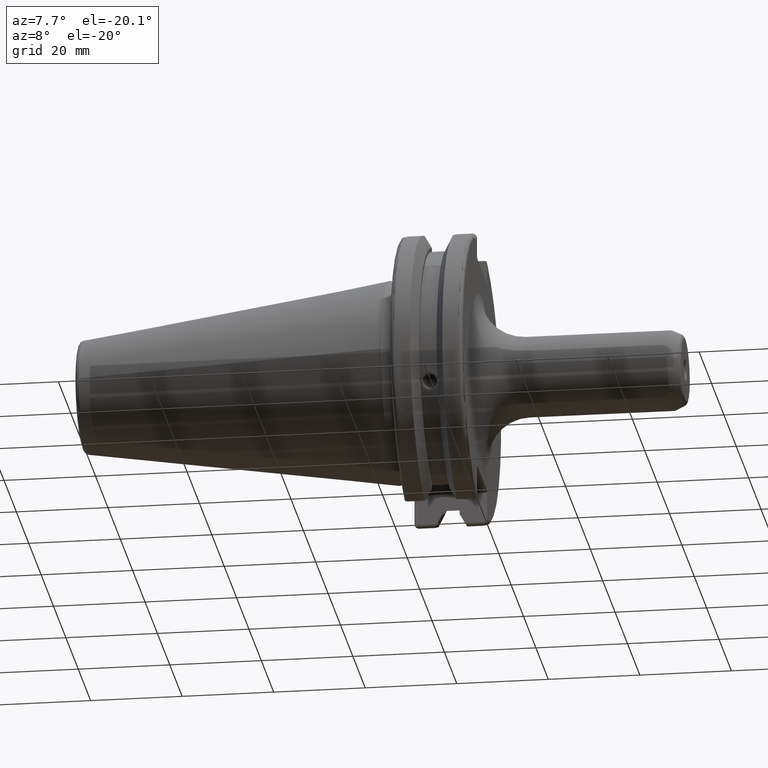
[diagram: clean part render]
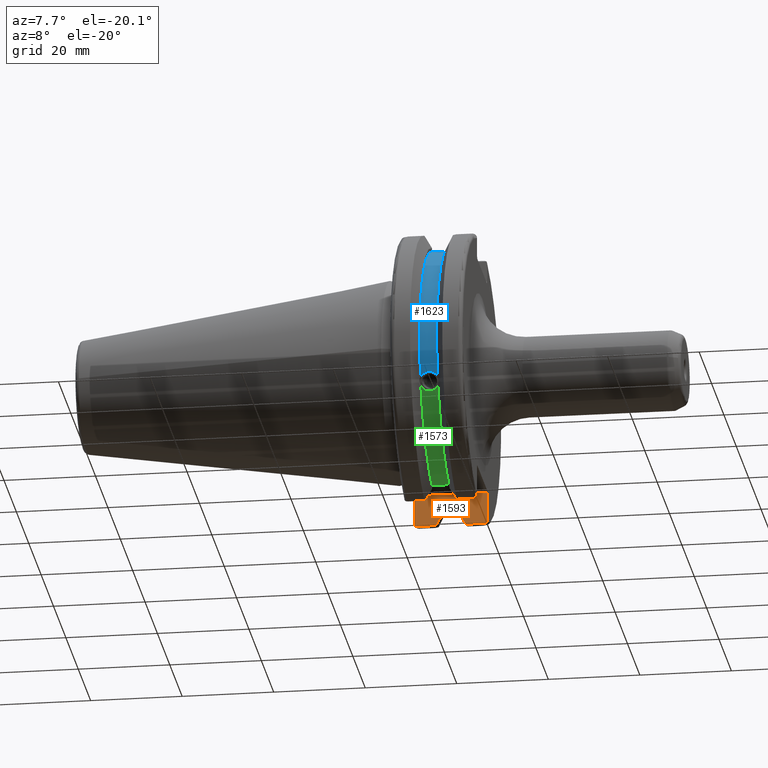
[diagram: same view with three faces highlighted in distinct colors, each labeled with its STEP entity id]
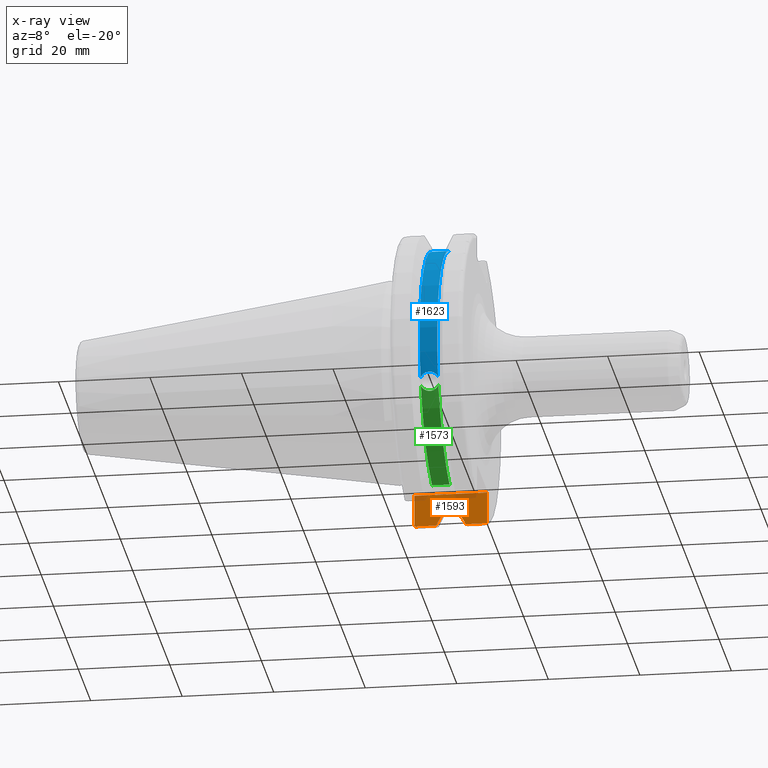
[diagram: x-ray of the same camera — body ghosted, the three highlighted faces saturated]
A machine part, auxiliary view with three faces highlighted in distinct colors.
The next image is the same camera in x-ray (body ghosted, the three faces saturated) — at least one of them is partly hidden behind the body in this view.
Their STEP definitions:

[orange] entity #1593 — the highlighted planar face has unit normal (-0, 1, 0).
#19=(
BOUNDED_CURVE()
B_SPLINE_CURVE(2,(#2837,#2838,#2839),.UNSPECIFIED.,.F.,.F.)
B_SPLINE_CURVE_WITH_KNOTS((3,3),(0.,0.276549142796136),.UNSPECIFIED.)
CURVE()
GEOMETRIC_REPRESENTATION_ITEM()
RATIONAL_B_SPLINE_CURVE((1.,1.00095203903316,1.00031614444813))
REPRESENTATION_ITEM('')
);
#24=(
BOUNDED_CURVE()
B_SPLINE_CURVE(2,(#2970,#2971,#2972),.UNSPECIFIED.,.F.,.F.)
B_SPLINE_CURVE_WITH_KNOTS((3,3),(0.0550586467393769,0.331607789535852),
 .UNSPECIFIED.)
CURVE()
GEOMETRIC_REPRESENTATION_ITEM()
RATIONAL_B_SPLINE_CURVE((1.00031614444922,1.00095203903643,1.))
REPRESENTATION_ITEM('')
);
#87=B_SPLINE_CURVE_WITH_KNOTS('',3,(#2927,#2928,#2929,#2930,#2931,#2932),
 .UNSPECIFIED.,.F.,.F.,(4,2,4),(0.452741154494497,0.491581665024871,0.505824174364157),
 .UNSPECIFIED.);
#90=B_SPLINE_CURVE_WITH_KNOTS('',3,(#2963,#2964,#2965,#2966,#2967,#2968),
 .UNSPECIFIED.,.F.,.F.,(4,2,4),(0.0977210450333169,0.111963554372601,0.150804064902975),
 .UNSPECIFIED.);
#114=LINE('',#2480,#208);
#143=LINE('',#2858,#237);
#144=LINE('',#2862,#238);
#145=LINE('',#2866,#239);
#154=LINE('',#2906,#248);
#160=LINE('',#2954,#254);
#162=LINE('',#2961,#256);
#163=LINE('',#2969,#257);
#208=VECTOR('',#1917,10.);
#237=VECTOR('',#2086,10.);
#238=VECTOR('',#2091,10.);
#239=VECTOR('',#2096,10.);
#248=VECTOR('',#2135,10.);
#254=VECTOR('',#2151,10.);
#256=VECTOR('',#2155,10.);
#257=VECTOR('',#2156,10.);
#346=PLANE('',#1781);
#417=FACE_OUTER_BOUND('',#519,.T.);
#519=EDGE_LOOP('',(#1326,#1327,#1328,#1329,#1330,#1331,#1332,#1333,#1334,
#1335,#1336,#1337));
#665=VERTEX_POINT('',#2458);
#675=VERTEX_POINT('',#2478);
#734=VERTEX_POINT('',#2834);
#735=VERTEX_POINT('',#2836);
#740=VERTEX_POINT('',#2856);
#741=VERTEX_POINT('',#2860);
#742=VERTEX_POINT('',#2864);
#757=VERTEX_POINT('',#2903);
#758=VERTEX_POINT('',#2905);
#764=VERTEX_POINT('',#2926);
#767=VERTEX_POINT('',#2953);
#769=VERTEX_POINT('',#2962);
#843=EDGE_CURVE('',#675,#665,#114,.T.);
#929=EDGE_CURVE('',#734,#735,#19,.T.);
#936=EDGE_CURVE('',#740,#734,#143,.T.);
#938=EDGE_CURVE('',#741,#740,#144,.T.);
#940=EDGE_CURVE('',#742,#741,#145,.T.);
#958=EDGE_CURVE('',#757,#758,#154,.T.);
#966=EDGE_CURVE('',#665,#764,#87,.T.);
#970=EDGE_CURVE('',#764,#767,#160,.T.);
#973=EDGE_CURVE('',#758,#675,#162,.T.);
#974=EDGE_CURVE('',#769,#757,#90,.T.);
#975=EDGE_CURVE('',#735,#769,#163,.T.);
#976=EDGE_CURVE('',#767,#742,#24,.T.);
#1326=ORIENTED_EDGE('',*,*,#966,.F.);
#1327=ORIENTED_EDGE('',*,*,#843,.F.);
#1328=ORIENTED_EDGE('',*,*,#973,.F.);
#1329=ORIENTED_EDGE('',*,*,#958,.F.);
#1330=ORIENTED_EDGE('',*,*,#974,.F.);
#1331=ORIENTED_EDGE('',*,*,#975,.F.);
#1332=ORIENTED_EDGE('',*,*,#929,.F.);
#1333=ORIENTED_EDGE('',*,*,#936,.F.);
#1334=ORIENTED_EDGE('',*,*,#938,.F.);
#1335=ORIENTED_EDGE('',*,*,#940,.F.);
#1336=ORIENTED_EDGE('',*,*,#976,.F.);
#1337=ORIENTED_EDGE('',*,*,#970,.F.);
#1593=ADVANCED_FACE('',(#417),#346,.F.);
#1781=AXIS2_PLACEMENT_3D('',#2960,#2153,#2154);
#1917=DIRECTION('',(0.,0.,-1.));
#2086=DIRECTION('',(0.,0.,-1.));
#2091=DIRECTION('',(-1.,0.,0.));
#2096=DIRECTION('',(0.,0.,1.));
#2135=DIRECTION('',(0.,0.,1.));
#2151=DIRECTION('',(-1.,-1.31581988103722E-16,0.));
#2153=DIRECTION('center_axis',(-1.31581988103722E-16,1.,0.));
#2154=DIRECTION('ref_axis',(1.,1.31581988103722E-16,0.));
#2155=DIRECTION('',(1.,1.31581988103722E-16,0.));
#2156=DIRECTION('',(-1.,-1.31581988103722E-16,0.));
#2458=CARTESIAN_POINT('',(19.05,8.19,-29.6392712461019));
#2478=CARTESIAN_POINT('',(19.05,8.19,-23.1));
#2480=CARTESIAN_POINT('',(19.05,8.19,-11.3));
#2834=CARTESIAN_POINT('',(9.2191,8.19,-27.7771386827498));
#2836=CARTESIAN_POINT('',(7.88668530351257,8.19,-30.1755016258903));
#2837=CARTESIAN_POINT('Ctrl Pts',(9.2191,8.19,-27.7771386827498));
#2838=CARTESIAN_POINT('Ctrl Pts',(8.58046356152393,8.19,-28.9303689539705));
#2839=CARTESIAN_POINT('Ctrl Pts',(7.88668530351257,8.19,-30.1755016258903));
#2856=CARTESIAN_POINT('',(9.2191,8.19,-26.932255754021));
#2858=CARTESIAN_POINT('',(9.2191,8.18999999999999,-11.3));
#2860=CARTESIAN_POINT('',(13.0491,8.19,-26.932255754021));
#2862=CARTESIAN_POINT('',(11.1341,8.19,-26.932255754021));
#2864=CARTESIAN_POINT('',(13.0491,8.19,-27.7771386827498));
#2866=CARTESIAN_POINT('',(13.0491,8.19,-11.3));
#2903=CARTESIAN_POINT('',(3.175,8.18999999999999,-29.6392712461019));
#2905=CARTESIAN_POINT('',(3.175,8.18999999999999,-23.1));
#2906=CARTESIAN_POINT('',(3.175,8.18999999999999,-11.3));
#2926=CARTESIAN_POINT('',(18.9058722749097,8.19,-30.1755016258903));
#2927=CARTESIAN_POINT('Ctrl Pts',(19.05,8.19,-29.6392712461019));
#2928=CARTESIAN_POINT('Ctrl Pts',(19.05,8.19,-29.7687396145364));
#2929=CARTESIAN_POINT('Ctrl Pts',(19.0204855670831,8.19,-29.9212724384851));
#2930=CARTESIAN_POINT('Ctrl Pts',(18.9539643471756,8.19,-30.0852355256475));
#2931=CARTESIAN_POINT('Ctrl Pts',(18.9318163728133,8.19,-30.131014531546));
#2932=CARTESIAN_POINT('Ctrl Pts',(18.9058722749097,8.19,-30.1755016258903));
#2953=CARTESIAN_POINT('',(14.3815146964874,8.19,-30.1755016258903));
#2954=CARTESIAN_POINT('',(16.8551333845378,8.19,-30.1755016258903));
#2960=CARTESIAN_POINT('Origin',(3.175,8.19,-22.6));
#2961=CARTESIAN_POINT('',(9.44125,8.19,-23.1));
#2962=CARTESIAN_POINT('',(3.31912772509028,8.19,-30.1755016258903));
#2963=CARTESIAN_POINT('Ctrl Pts',(3.31912772509028,8.19,-30.1755016258903));
#2964=CARTESIAN_POINT('Ctrl Pts',(3.29318362718666,8.19,-30.131014531546));
#2965=CARTESIAN_POINT('Ctrl Pts',(3.27103565282437,8.19,-30.0852355256475));
#2966=CARTESIAN_POINT('Ctrl Pts',(3.20451443291695,8.19,-29.9212724384851));
#2967=CARTESIAN_POINT('Ctrl Pts',(3.175,8.19,-29.7687396145364));
#2968=CARTESIAN_POINT('Ctrl Pts',(3.175,8.19,-29.6392712461019));
#2969=CARTESIAN_POINT('',(5.39146661546218,8.19,-30.1755016258903));
#2970=CARTESIAN_POINT('Ctrl Pts',(14.3815146964874,8.18999999999999,-30.1755016258903));
#2971=CARTESIAN_POINT('Ctrl Pts',(13.687736438474,8.19,-28.9303689539668));
#2972=CARTESIAN_POINT('Ctrl Pts',(13.0491,8.19,-27.7771386827498));

[blue] entity #1623 — the highlighted cylindrical surface (partial cylindrical patch) has radius 28.15 mm, axis along (1, 0, 0).
#77=B_SPLINE_CURVE_WITH_KNOTS('',3,(#2621,#2622,#2623,#2624,#2625,#2626,
#2627,#2628,#2629,#2630,#2631,#2632,#2633,#2634),.UNSPECIFIED.,.F.,.F.,
(4,2,2,2,2,2,4),(0.401639126382404,0.474814416953736,0.553950208498303,
0.63308600004287,0.712221791587437,0.791357583132004,0.864532873703336),
 .UNSPECIFIED.);
#167=LINE('',#3025,#261);
#261=VECTOR('',#2166,10.);
#316=CYLINDRICAL_SURFACE('',#1826,28.15);
#447=FACE_OUTER_BOUND('',#550,.T.);
#550=EDGE_LOOP('',(#1483,#1484,#1485,#1486));
#636=CIRCLE('',#1827,28.15);
#637=CIRCLE('',#1828,28.15);
#695=VERTEX_POINT('',#2618);
#696=VERTEX_POINT('',#2620);
#777=VERTEX_POINT('',#3022);
#778=VERTEX_POINT('',#3024);
#876=EDGE_CURVE('',#696,#695,#77,.T.);
#987=EDGE_CURVE('',#778,#777,#167,.T.);
#1038=EDGE_CURVE('',#778,#695,#636,.T.);
#1039=EDGE_CURVE('',#777,#696,#637,.T.);
#1483=ORIENTED_EDGE('',*,*,#876,.T.);
#1484=ORIENTED_EDGE('',*,*,#1038,.F.);
#1485=ORIENTED_EDGE('',*,*,#987,.T.);
#1486=ORIENTED_EDGE('',*,*,#1039,.T.);
#1623=ADVANCED_FACE('',(#447),#316,.T.);
#1826=AXIS2_PLACEMENT_3D('',#3173,#2274,#2275);
#1827=AXIS2_PLACEMENT_3D('',#3174,#2276,#2277);
#1828=AXIS2_PLACEMENT_3D('',#3175,#2278,#2279);
#2166=DIRECTION('',(-1.,0.,0.));
#2274=DIRECTION('center_axis',(1.,0.,0.));
#2275=DIRECTION('ref_axis',(0.,-0.887654187951484,0.46051063246378));
#2276=DIRECTION('center_axis',(1.,0.,0.));
#2277=DIRECTION('ref_axis',(0.,0.,-1.));
#2278=DIRECTION('center_axis',(1.,0.,0.));
#2279=DIRECTION('ref_axis',(0.,0.,-1.));
#2618=CARTESIAN_POINT('',(13.0491,-26.734714844398,-8.81348524641211));
#2620=CARTESIAN_POINT('',(9.2191,-26.734714844398,-8.81348524641212));
#2621=CARTESIAN_POINT('Ctrl Pts',(9.2191,-26.734714844398,-8.81348524641212));
#2622=CARTESIAN_POINT('Ctrl Pts',(9.32533057097183,-26.8086519721597,-8.58920529678291));
#2623=CARTESIAN_POINT('Ctrl Pts',(9.47682013770509,-26.8729987454904,-8.38416529997369));
#2624=CARTESIAN_POINT('Ctrl Pts',(9.83557062657411,-26.9778908791383,-8.04056861831091));
#2625=CARTESIAN_POINT('Ctrl Pts',(10.0716450112988,-27.0233016799732,-7.88512567185902));
#2626=CARTESIAN_POINT('Ctrl Pts',(10.5890125426388,-27.0826966800569,-7.6786444840004));
#2627=CARTESIAN_POINT('Ctrl Pts',(10.8703140281848,-27.0968804077294,-7.62768458768512));
#2628=CARTESIAN_POINT('Ctrl Pts',(11.3978859718152,-27.0968804077294,-7.62768458768512));
#2629=CARTESIAN_POINT('Ctrl Pts',(11.6791874573612,-27.0826966800569,-7.6786444840004));
#2630=CARTESIAN_POINT('Ctrl Pts',(12.1965549887012,-27.0233016799732,-7.88512567185902));
#2631=CARTESIAN_POINT('Ctrl Pts',(12.4326293734259,-26.9778908791383,-8.04056861831091));
#2632=CARTESIAN_POINT('Ctrl Pts',(12.7913798622949,-26.8729987454904,-8.38416529997369));
#2633=CARTESIAN_POINT('Ctrl Pts',(12.9428694290282,-26.8086519721597,-8.58920529678291));
#2634=CARTESIAN_POINT('Ctrl Pts',(13.0491,-26.734714844398,-8.81348524641211));
#3022=CARTESIAN_POINT('',(9.2191,-8.19,26.932255754021));
#3024=CARTESIAN_POINT('',(13.0491,-8.19,26.932255754021));
#3025=CARTESIAN_POINT('',(11.1341,-8.19,26.932255754021));
#3173=CARTESIAN_POINT('Origin',(11.1341,0.,0.));
#3174=CARTESIAN_POINT('Origin',(13.0491,0.,0.));
#3175=CARTESIAN_POINT('Origin',(9.2191,0.,0.));

[green] entity #1573 — the highlighted cylindrical surface (partial cylindrical patch) has radius 28.15 mm, axis along (1, 0, 0).
#79=B_SPLINE_CURVE_WITH_KNOTS('',3,(#2655,#2656,#2657,#2658,#2659,#2660,
#2661,#2662,#2663,#2664,#2665,#2666,#2667,#2668,#2669),.UNSPECIFIED.,.F.,
 .F.,(4,2,2,3,2,2,4),(-0.231446873660085,-0.158271583089134,-0.0791357915445672,
0.,0.0791357915445671,0.158271583089134,0.231446873660466),
 .UNSPECIFIED.);
#133=LINE('',#2727,#227);
#227=VECTOR('',#2028,10.);
#301=CYLINDRICAL_SURFACE('',#1731,28.15);
#397=FACE_OUTER_BOUND('',#494,.T.);
#494=EDGE_LOOP('',(#1211,#1212,#1213,#1214));
#599=CIRCLE('',#1730,28.15);
#600=CIRCLE('',#1732,28.15);
#699=VERTEX_POINT('',#2652);
#700=VERTEX_POINT('',#2654);
#713=VERTEX_POINT('',#2721);
#714=VERTEX_POINT('',#2725);
#880=EDGE_CURVE('',#700,#699,#79,.T.);
#898=EDGE_CURVE('',#700,#713,#599,.T.);
#900=EDGE_CURVE('',#699,#714,#600,.T.);
#901=EDGE_CURVE('',#714,#713,#133,.T.);
#1211=ORIENTED_EDGE('',*,*,#880,.T.);
#1212=ORIENTED_EDGE('',*,*,#900,.T.);
#1213=ORIENTED_EDGE('',*,*,#901,.T.);
#1214=ORIENTED_EDGE('',*,*,#898,.F.);
#1573=ADVANCED_FACE('',(#397),#301,.T.);
#1730=AXIS2_PLACEMENT_3D('',#2722,#2021,#2022);
#1731=AXIS2_PLACEMENT_3D('',#2724,#2024,#2025);
#1732=AXIS2_PLACEMENT_3D('',#2726,#2026,#2027);
#2021=DIRECTION('center_axis',(1.,0.,0.));
#2022=DIRECTION('ref_axis',(0.,0.,-1.));
#2024=DIRECTION('center_axis',(1.,0.,0.));
#2025=DIRECTION('ref_axis',(0.,1.,0.));
#2026=DIRECTION('center_axis',(1.,0.,0.));
#2027=DIRECTION('ref_axis',(0.,0.,-1.));
#2028=DIRECTION('',(1.,0.,0.));
#2652=CARTESIAN_POINT('',(9.2191,-26.1451788594704,-10.4332220529567));
#2654=CARTESIAN_POINT('',(13.0491,-26.1451788594704,-10.4332220529567));
#2655=CARTESIAN_POINT('Ctrl Pts',(13.0491,-26.1451788594704,-10.4332220529567));
#2656=CARTESIAN_POINT('Ctrl Pts',(12.9428694290343,-26.0576536126147,-10.6525563316815));
#2657=CARTESIAN_POINT('Ctrl Pts',(12.791379862294,-25.9751489313128,-10.8509873904882));
#2658=CARTESIAN_POINT('Ctrl Pts',(12.4326293734259,-25.8346412777187,-11.1816210830117));
#2659=CARTESIAN_POINT('Ctrl Pts',(12.1965549887012,-25.7695111693635,-11.3298867884858));
#2660=CARTESIAN_POINT('Ctrl Pts',(11.6791874573612,-25.6822868299377,-11.5262389251846));
#2661=CARTESIAN_POINT('Ctrl Pts',(11.3978859718152,-25.6603958057616,-11.5743935949859));
#2662=CARTESIAN_POINT('Ctrl Pts',(11.1341,-25.6603958057616,-11.5743935949859));
#2663=CARTESIAN_POINT('Ctrl Pts',(10.8703140281848,-25.6603958057616,-11.5743935949859));
#2664=CARTESIAN_POINT('Ctrl Pts',(10.5890125426388,-25.6822868299377,-11.5262389251846));
#2665=CARTESIAN_POINT('Ctrl Pts',(10.0716450112988,-25.7695111693635,-11.3298867884858));
#2666=CARTESIAN_POINT('Ctrl Pts',(9.83557062657411,-25.8346412777187,-11.1816210830117));
#2667=CARTESIAN_POINT('Ctrl Pts',(9.4768201377051,-25.9751489313131,-10.8509873904873));
#2668=CARTESIAN_POINT('Ctrl Pts',(9.32533057097183,-26.0576536126096,-10.6525563316942));
#2669=CARTESIAN_POINT('Ctrl Pts',(9.2191,-26.1451788594704,-10.4332220529567));
#2721=CARTESIAN_POINT('',(13.0491,-8.19,-26.932255754021));
#2722=CARTESIAN_POINT('Origin',(13.0491,0.,0.));
#2724=CARTESIAN_POINT('Origin',(11.1341,0.,0.));
#2725=CARTESIAN_POINT('',(9.2191,-8.19,-26.932255754021));
#2726=CARTESIAN_POINT('Origin',(9.2191,0.,0.));
#2727=CARTESIAN_POINT('',(11.1341,-8.19,-26.932255754021));